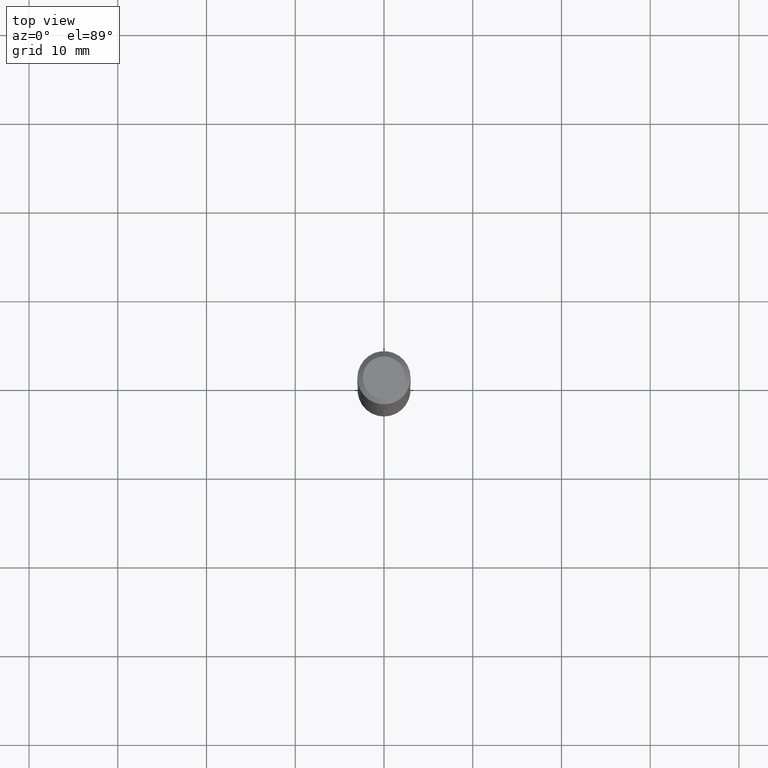
[diagram: clean part render]
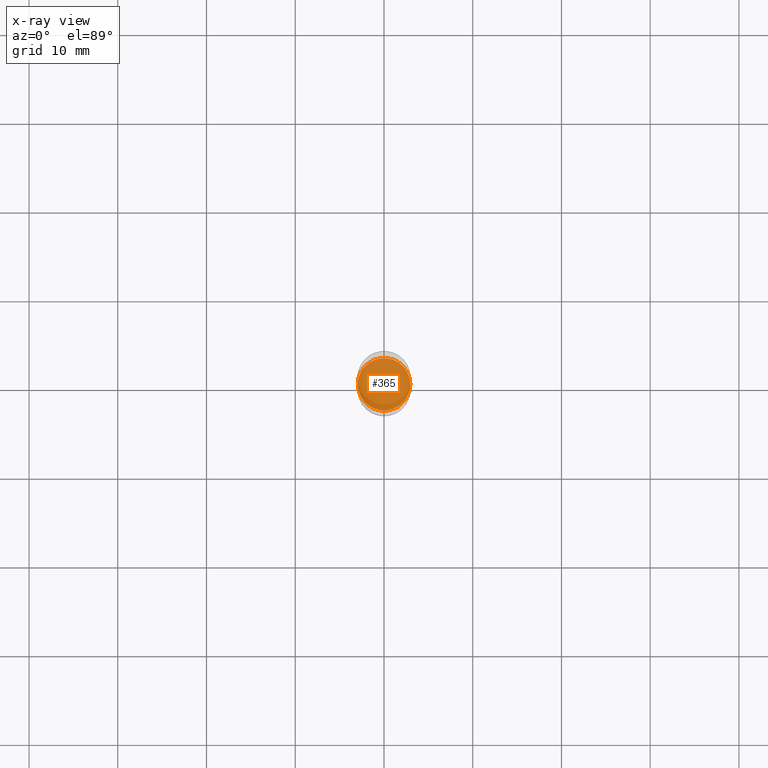
[diagram: x-ray — body ghosted, one internal face saturated and labeled with its STEP entity id]
A machine part, top view, then the same camera in x-ray: the body is ghosted and one INTERNAL B-rep face — a face not visible from any outside direction — is saturated and labeled: STEP entity #365.
In plain terms, the highlighted planar face has unit normal (-0, 0, 1).
Its self-contained STEP definition (entity closure, byte-faithful):
#9 = AXIS2_PLACEMENT_3D ( 'NONE', #463, #461, #459 ) ;
#24 = DIRECTION ( 'NONE',  ( -2.445468806185136597E-29, 3.491481338843145583E-15, 1.000000000000000000 ) ) ;
#119 = AXIS2_PLACEMENT_3D ( 'NONE', #215, #24, #300 ) ;
#121 = EDGE_CURVE ( 'NONE', #223, #259, #358, .T. ) ;
#131 = CARTESIAN_POINT ( 'NONE',  ( -0.1166999999999999982, -5.209806708928030273E-15, -1.730400000000000160 ) ) ;
#149 = CARTESIAN_POINT ( 'NONE',  ( 1.403036846735455554E-29, -1.009237890448108840E-14, -1.730400000000000160 ) ) ;
#168 = ORIENTED_EDGE ( 'NONE', *, *, #455, .F. ) ;
#210 = DIRECTION ( 'NONE',  ( 1.000000000000000000, -6.982962677686265922E-15, 4.876176775795935793E-29 ) ) ;
#214 = AXIS2_PLACEMENT_3D ( 'NONE', #149, #397, #210 ) ;
#215 = CARTESIAN_POINT ( 'NONE',  ( 4.231639222222761092E-29, -6.041659308734179365E-15, -1.730400000000000160 ) ) ;
#217 = CARTESIAN_POINT ( 'NONE',  ( 0.1166999999999999982, -6.856571053220166418E-15, -1.730400000000000160 ) ) ;
#220 = PLANE ( 'NONE',  #214 ) ;
#223 = VERTEX_POINT ( 'NONE', #131 ) ;
#259 = VERTEX_POINT ( 'NONE', #217 ) ;
#269 = ORIENTED_EDGE ( 'NONE', *, *, #121, .F. ) ;
#300 = DIRECTION ( 'NONE',  ( 1.000000000000000000, -6.982962677686265133E-15, 0.000000000000000000 ) ) ;
#321 = CIRCLE ( 'NONE', #119, 0.1166999999999999982 ) ;
#323 = FACE_OUTER_BOUND ( 'NONE', #446, .T. ) ;
#358 = CIRCLE ( 'NONE', #9, 0.1166999999999999982 ) ;
#365 = ADVANCED_FACE ( 'NONE', ( #323 ), #220, .F. ) ;
#397 = DIRECTION ( 'NONE',  ( -2.438088387897960049E-29, 3.491481338843145188E-15, 1.000000000000000000 ) ) ;
#446 = EDGE_LOOP ( 'NONE', ( #168, #269 ) ) ;
#455 = EDGE_CURVE ( 'NONE', #259, #223, #321, .T. ) ;
#459 = DIRECTION ( 'NONE',  ( 1.000000000000000000, -6.982962677686265133E-15, 0.000000000000000000 ) ) ;
#461 = DIRECTION ( 'NONE',  ( -2.445468806185136597E-29, 3.491481338843145583E-15, 1.000000000000000000 ) ) ;
#463 = CARTESIAN_POINT ( 'NONE',  ( 4.231639222222761092E-29, -6.041659308734179365E-15, -1.730400000000000160 ) ) ;